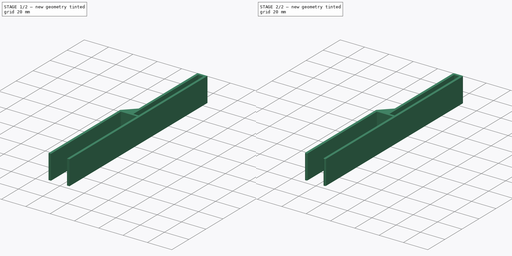
[diagram: build sequence overview — one tinted view per stage of 2, left to right]
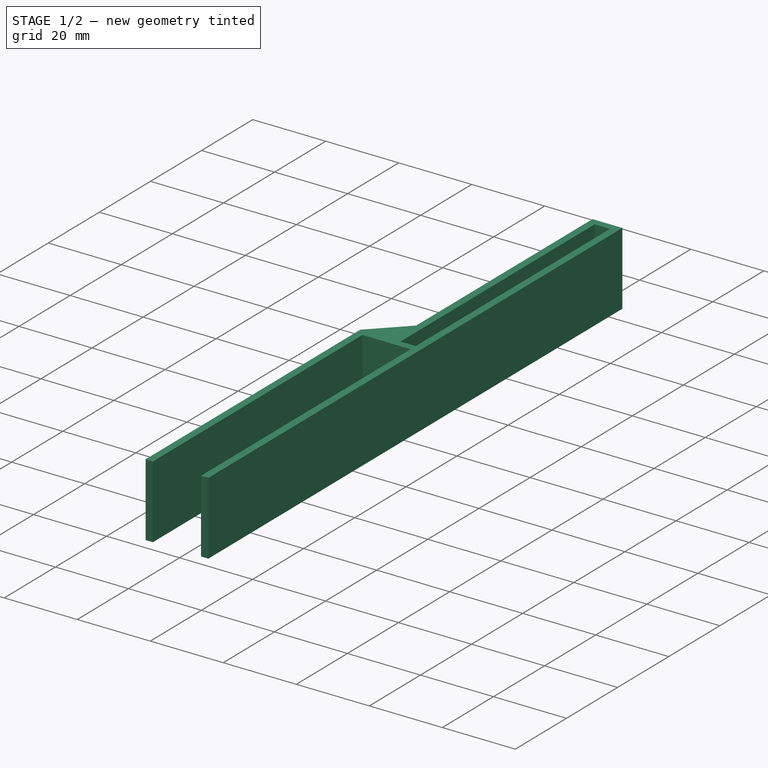
[diagram: stage 1 of 2 — iso view after this stage's code; geometry added in this stage tinted green]
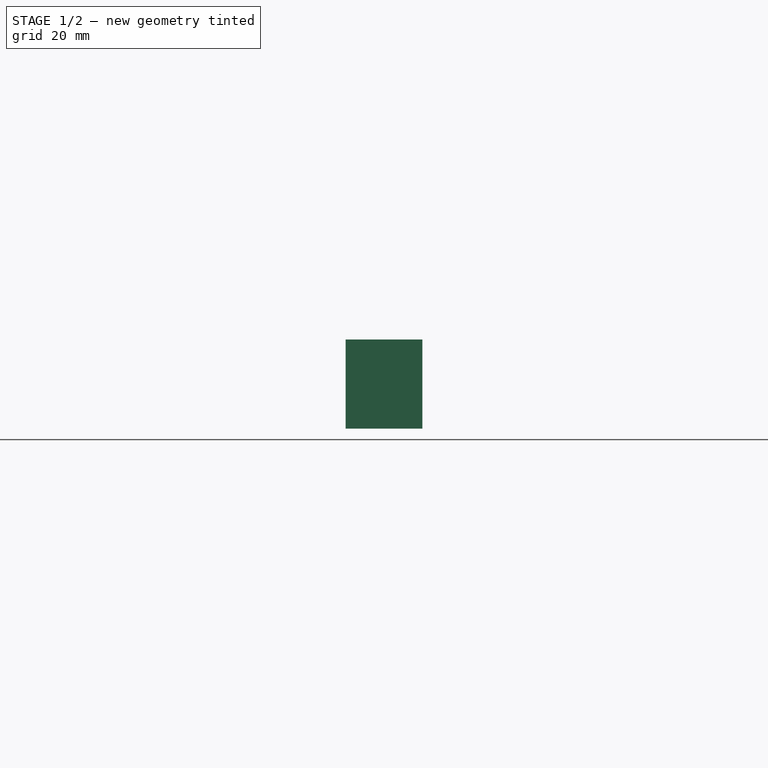
[diagram: stage 1 of 2 — front view after this stage's code; geometry added in this stage tinted green]
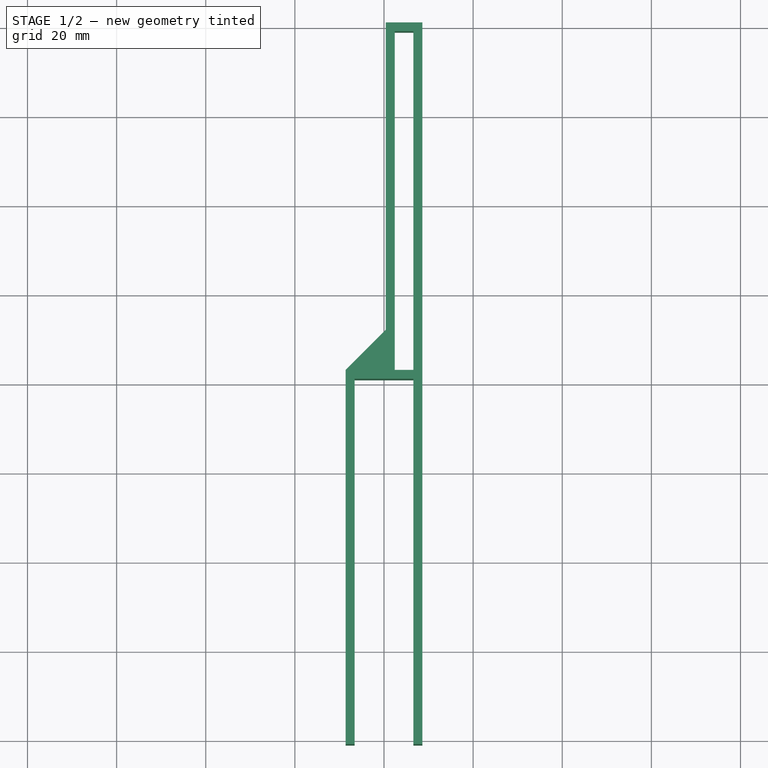
[diagram: stage 1 of 2 — top view after this stage's code; geometry added in this stage tinted green]
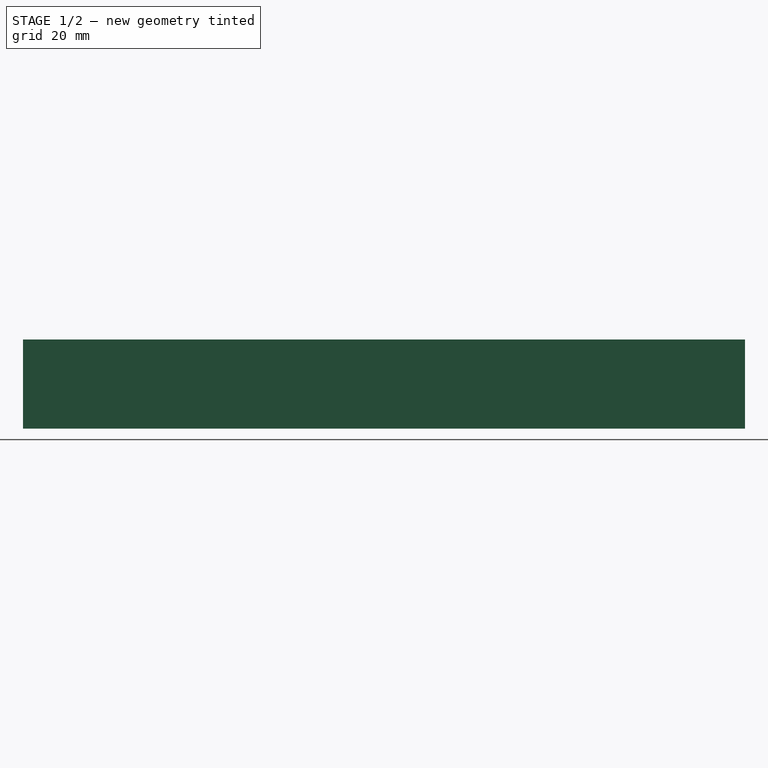
[diagram: stage 1 of 2 — right view after this stage's code; geometry added in this stage tinted green]
FCSTD DOCUMENT  (FreeCAD 0.18.4R)
Label: DrawerBackExtender
License: All rights reserved
LicenseURL: http://en.wikipedia.org/wiki/All_rights_reserved
objects: Sketcher::SketchObject×1, PartDesign::Pad×1, PartDesign::Fillet×1, PartDesign::Body×1
note: 5 computed .brp shape members not serialized (recipe doc carries the construction recipe); baked Part::Feature solids carry a one-line shape summary decoded from their .brp

FEATURE [Sketcher::SketchObject] Sketch
  MapMode = 5
  Support = -> [XY_Plane]
  sketch-geometry (19):
    g0: LineSegment StartX=-6.6 StartY=-81 StartZ=0 EndX=-6.6 EndY=1 EndZ=0
    g1: LineSegment StartX=-6.6 StartY=1 StartZ=0 EndX=6.6 EndY=1 EndZ=0
    g2: LineSegment StartX=6.6 StartY=1 StartZ=0 EndX=6.6 EndY=-81 EndZ=0
    g3: LineSegment StartX=6.6 StartY=-81 StartZ=0 EndX=8.6 EndY=-81 EndZ=0
    g4: LineSegment StartX=8.6 StartY=-81 StartZ=0 EndX=8.6 EndY=81 EndZ=0
    g5: LineSegment StartX=6.6 StartY=79 StartZ=0 EndX=6.6 EndY=3 EndZ=0
    g6: LineSegment StartX=6.6 StartY=3 StartZ=0 EndX=2.4 EndY=3 EndZ=0
    g7: LineSegment StartX=2.4 StartY=3 StartZ=0 EndX=2.4 EndY=79 EndZ=0
    g8: LineSegment StartX=0.4 StartY=81 StartZ=0 EndX=0.4 EndY=12 EndZ=0
    g9: LineSegment StartX=0.4 StartY=12 StartZ=0 EndX=-8.6 EndY=3 EndZ=0
    g10: LineSegment StartX=-8.6 StartY=3 StartZ=0 EndX=-8.6 EndY=-81 EndZ=0
    g11: LineSegment StartX=-8.6 StartY=-81 StartZ=0 EndX=-6.6 EndY=-81 EndZ=0
    g12: LineSegment [constr] StartX=6.6 StartY=3 StartZ=0 EndX=6.6 EndY=1 EndZ=0
    g13: LineSegment StartX=2.4 StartY=79 StartZ=0 EndX=6.6 EndY=79 EndZ=0
    g14: LineSegment [constr] StartX=-6.6 StartY=-81 StartZ=0 EndX=6.6 EndY=-81 EndZ=0
    g15: LineSegment [constr] StartX=-8.6 StartY=3 StartZ=0 EndX=2.4 EndY=3 EndZ=0
    g16: LineSegment StartX=0.4 StartY=81 StartZ=0 EndX=8.6 EndY=81 EndZ=0
    g17: LineSegment [constr] StartX=6.6 StartY=79 StartZ=0 EndX=6.6 EndY=81 EndZ=0
    g18: LineSegment [constr] StartX=2.4 StartY=79 StartZ=0 EndX=0.4 EndY=79 EndZ=0
  constraints (54):
    c: Vertical(g0)
    c: Coincident(g0,g1)
    c: Horizontal(g1)
    c: Coincident(g1,g2)
    c: Vertical(g2)
    c: Coincident(g2,g3)
    c: Horizontal(g3)
    c: Coincident(g3,g4)
    c: Vertical(g4)
    c: Vertical(g5)
    c: Coincident(g5,g6)
    c: Horizontal(g6)
    c: Coincident(g6,g7)
    c: Vertical(g7)
    c: Vertical(g8)
    c: Coincident(g8,g9)
    c: Coincident(g9,g10)
    c: Vertical(g10)
    c: Coincident(g10,g11)
    c: Horizontal(g11)
    c: Coincident(g0,g11)
    c: Coincident(g12,g5)
    c: Coincident(g12,g1)
    c: Vertical(g12)
    c: Coincident(g13,g7)
    c: Horizontal(g13)
    c: Coincident(g14,g0)
    c: Coincident(g14,g2)
    c: Horizontal(g14)
    c: Equal(g11,g12)
    c: DistanceX(g3,g3) = 2
    c: DistanceX(g14,g14) = 13.2
    c: Angle(g1,g9) = 0.785398
    c: DistanceX(g13,g13) = 4.2
    c: Symmetric(g10,g4,g-1)  '__ANCHOR__'
    c: DistanceY(g10,g0) = 82
    c: Coincident(g15,g9)
    c: Coincident(g15,g6)
    c: Horizontal(g15)
    c: DistanceY(g9,g8) = 78
    c: Coincident(g5,g13)
    c: Coincident(g16,g8)
    c: Coincident(g16,g4)
    c: Horizontal(g16)
    c: Coincident(g17,g5)
    c: PointOnObject(g17,g16)
    c: Vertical(g17)
    c: Equal(g3,g11)
    c: Coincident(g18,g7)
    c: PointOnObject(g18,g8)
    c: Horizontal(g18)
    c: Equal(g18,g17)
    c: Equal(g17,g3)
    c: DistanceY(g5,g5) = 76
FEATURE [PartDesign::Pad] Pad
  Length = 20
  Length2 = 100
  Profile = -> Sketch
  Type = 0
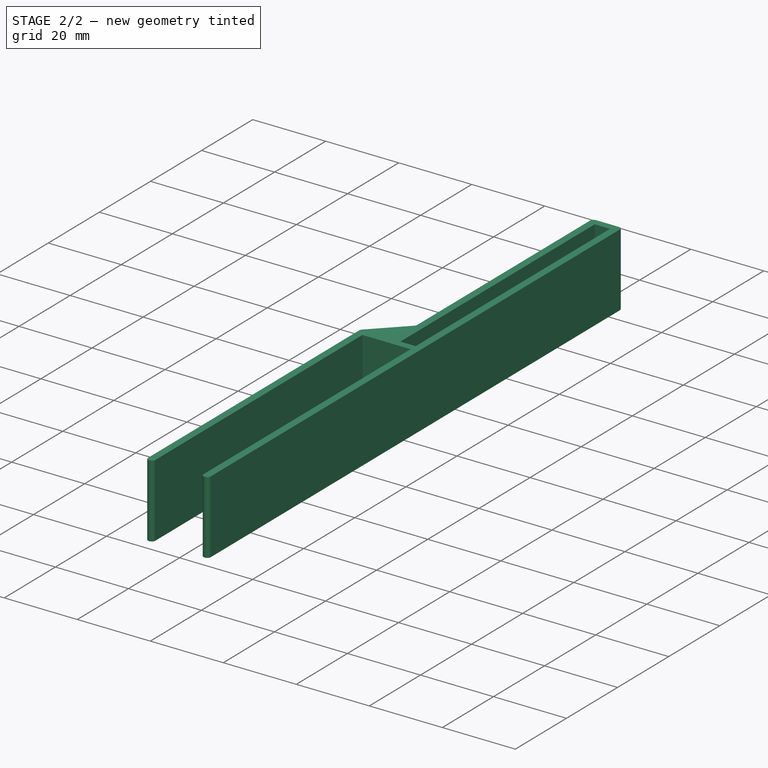
[diagram: stage 2 of 2 — iso view after this stage's code; geometry added in this stage tinted green]
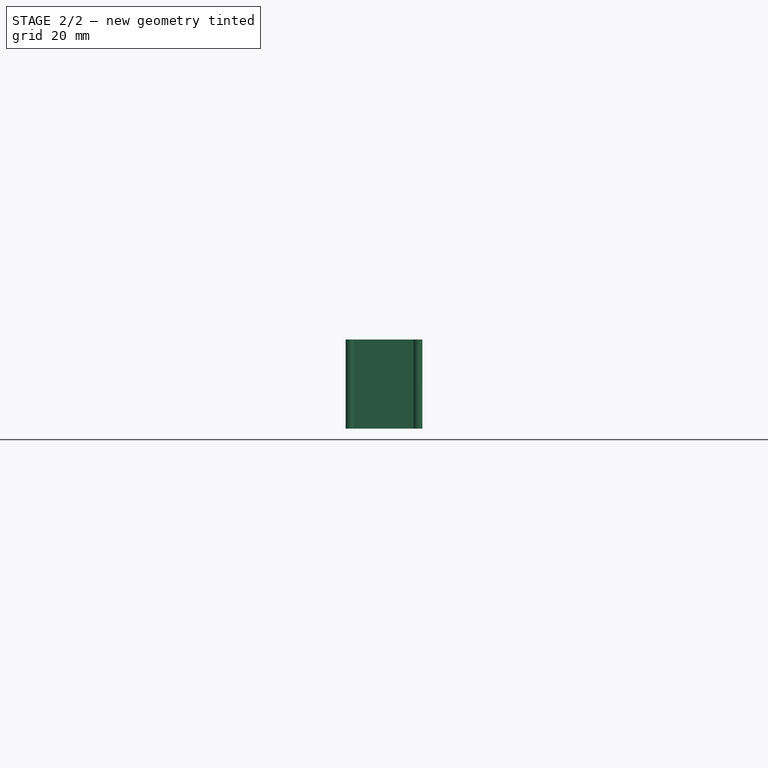
[diagram: stage 2 of 2 — front view after this stage's code; geometry added in this stage tinted green]
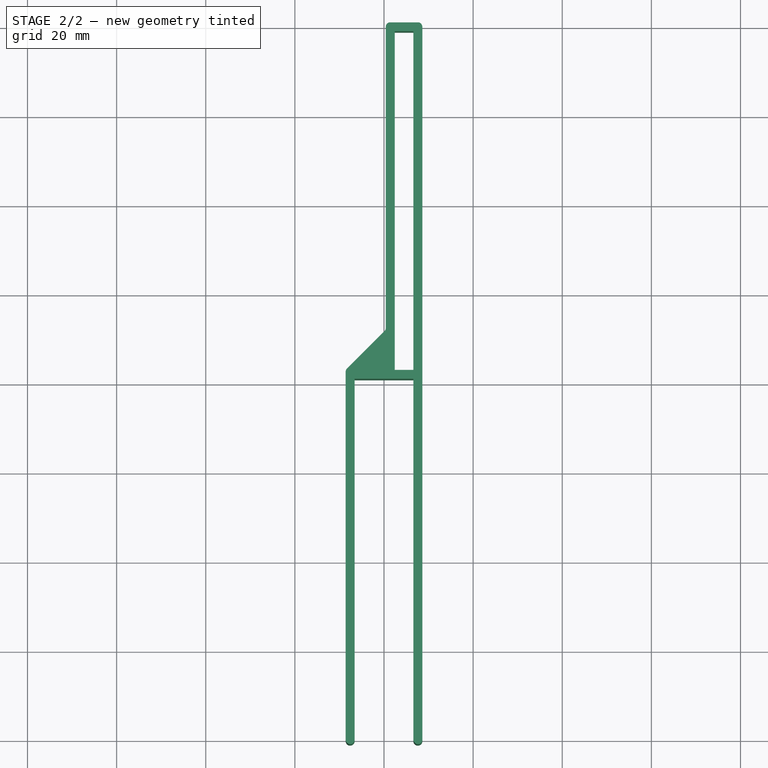
[diagram: stage 2 of 2 — top view after this stage's code; geometry added in this stage tinted green]
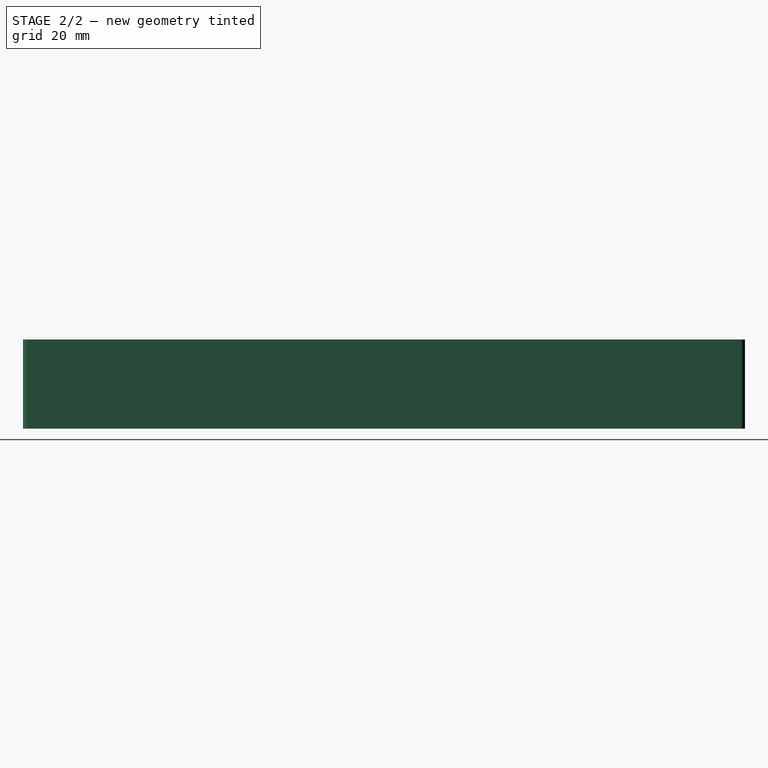
[diagram: stage 2 of 2 — right view after this stage's code; geometry added in this stage tinted green]
FEATURE [PartDesign::Fillet] Fillet
  Base = -> Pad [Edge26,Edge1,Edge5,Edge2,Edge8,Edge20,Edge11,Edge23]
  BaseFeature = -> Pad
  Radius = 0.99
FEATURE [PartDesign::Body] Body
  Group = -> [Sketch,Pad,Fillet]
  Origin = -> Origin
  Tip = -> Fillet
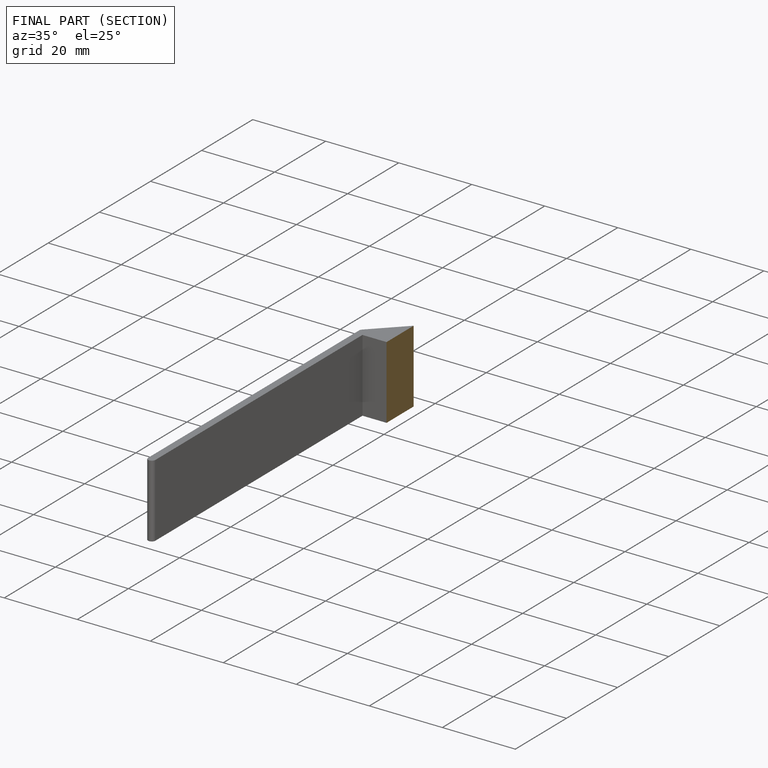
[diagram: finished part — half-section view (interior)]
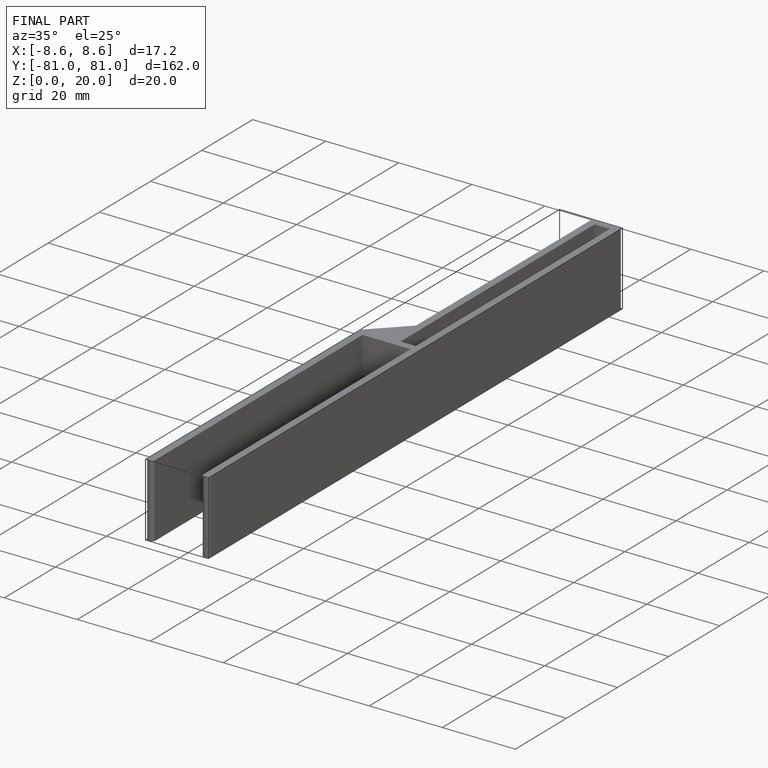
[diagram: finished part — iso view with bounding-box wireframe]
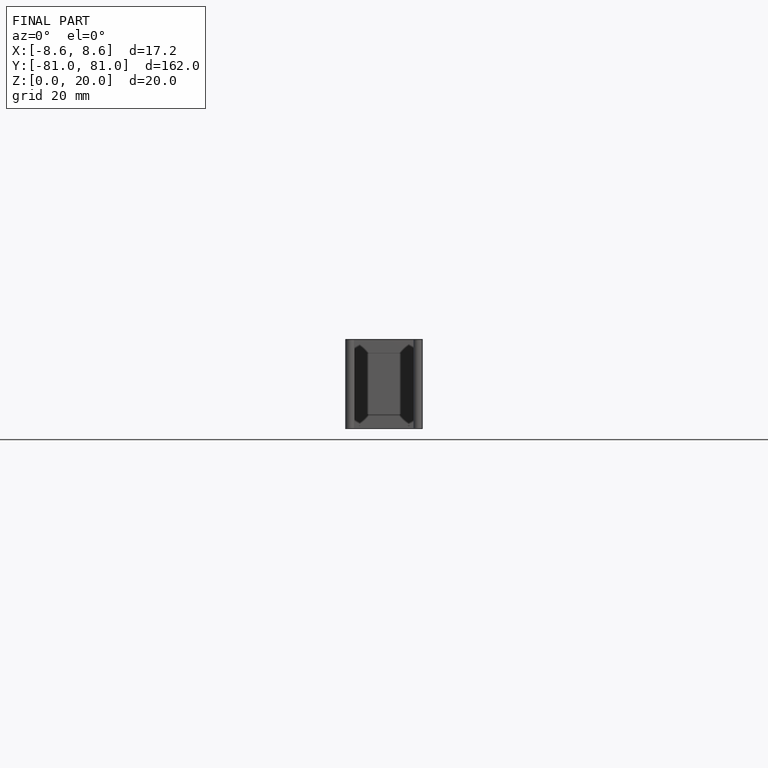
[diagram: finished part — front view with bounding-box wireframe]
